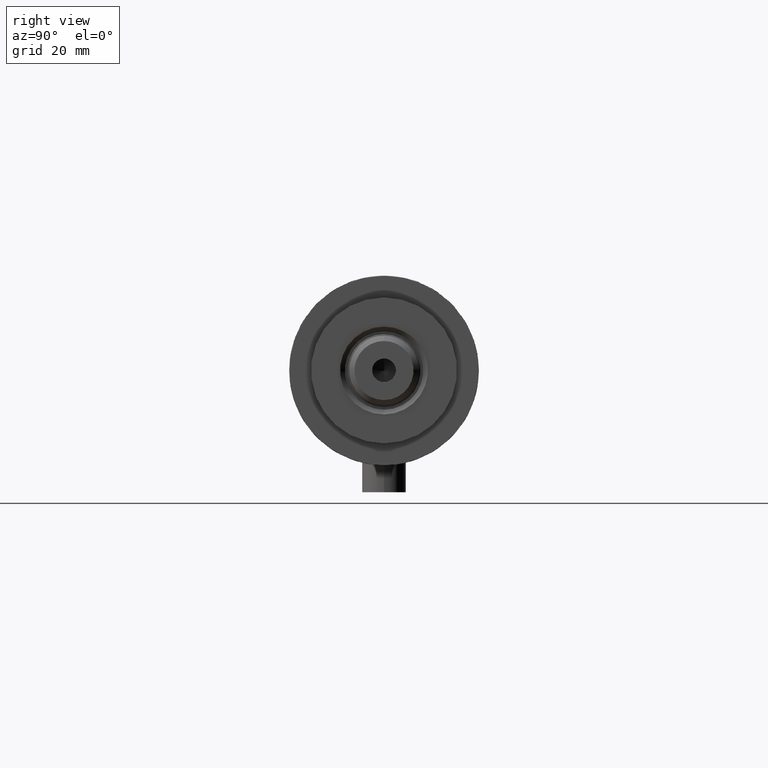
[diagram: clean part render]
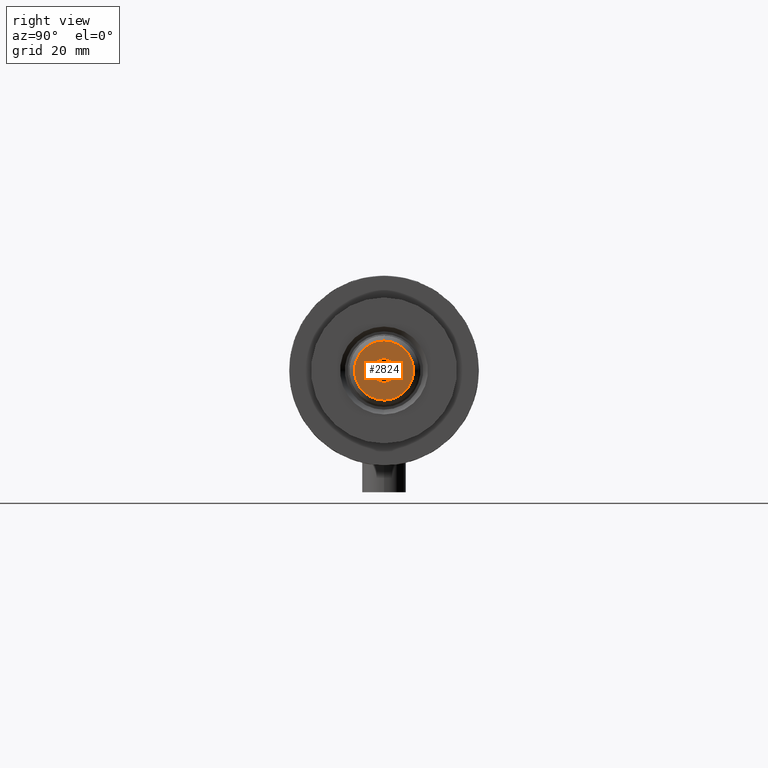
[diagram: same view with one face highlighted and labeled with its STEP entity id]
A machine part, right view. The second image highlights one B-rep face of the part: STEP entity #2824.
In plain terms, the highlighted planar face has unit normal (1, 0, -0).
Its self-contained STEP definition (entity closure, byte-faithful):
#50 = DIRECTION ( 'NONE',  ( -0.000000000000000000, -0.000000000000000000, 1.000000000000000000 ) ) ;
#89 = DIRECTION ( 'NONE',  ( 1.000000000000000000, 0.000000000000000000, 0.000000000000000000 ) ) ;
#128 = CARTESIAN_POINT ( 'NONE',  ( 3.249999999999998224, 0.000000000000000000, 149.6000000000000227 ) ) ;
#334 = VERTEX_POINT ( 'NONE', #128 ) ;
#353 = EDGE_LOOP ( 'NONE', ( #3191, #3485 ) ) ;
#388 = CARTESIAN_POINT ( 'NONE',  ( -3.249999999999998224, 3.980102097228895766E-16, 149.6000000000000227 ) ) ;
#480 = AXIS2_PLACEMENT_3D ( 'NONE', #1323, #2076, #4066 ) ;
#713 = AXIS2_PLACEMENT_3D ( 'NONE', #1888, #4336, #988 ) ;
#819 = CARTESIAN_POINT ( 'NONE',  ( 0.000000000000000000, 0.000000000000000000, 149.6000000000000227 ) ) ;
#988 = DIRECTION ( 'NONE',  ( 1.000000000000000000, 0.000000000000000000, 0.000000000000000000 ) ) ;
#1003 = EDGE_CURVE ( 'NONE', #3436, #334, #2622, .T. ) ;
#1028 = CIRCLE ( 'NONE', #713, 8.099999999999981881 ) ;
#1168 = CARTESIAN_POINT ( 'NONE',  ( -8.099999999999981881, 0.000000000000000000, 149.6000000000000227 ) ) ;
#1212 = VERTEX_POINT ( 'NONE', #1532 ) ;
#1237 = CARTESIAN_POINT ( 'NONE',  ( 0.000000000000000000, 0.000000000000000000, 149.6000000000000227 ) ) ;
#1244 = EDGE_CURVE ( 'NONE', #334, #3436, #4816, .T. ) ;
#1311 = EDGE_LOOP ( 'NONE', ( #3894, #1405 ) ) ;
#1323 = CARTESIAN_POINT ( 'NONE',  ( 0.000000000000000000, 0.000000000000000000, 149.6000000000000227 ) ) ;
#1405 = ORIENTED_EDGE ( 'NONE', *, *, #1003, .F. ) ;
#1532 = CARTESIAN_POINT ( 'NONE',  ( 8.099999999999981881, 1.077689183249669619E-15, 149.6000000000000227 ) ) ;
#1654 = CIRCLE ( 'NONE', #2941, 8.099999999999981881 ) ;
#1711 = PLANE ( 'NONE',  #480 ) ;
#1737 = FACE_OUTER_BOUND ( 'NONE', #353, .T. ) ;
#1888 = CARTESIAN_POINT ( 'NONE',  ( 0.000000000000000000, 0.000000000000000000, 149.6000000000000227 ) ) ;
#2076 = DIRECTION ( 'NONE',  ( 0.000000000000000000, 0.000000000000000000, 1.000000000000000000 ) ) ;
#2209 = EDGE_CURVE ( 'NONE', #1212, #3195, #1654, .T. ) ;
#2622 = CIRCLE ( 'NONE', #4737, 3.249999999999998224 ) ;
#2824 = ADVANCED_FACE ( 'NONE', ( #1737, #4036 ), #1711, .T. ) ;
#2941 = AXIS2_PLACEMENT_3D ( 'NONE', #4602, #3134, #89 ) ;
#3065 = DIRECTION ( 'NONE',  ( 1.000000000000000000, 0.000000000000000000, 0.000000000000000000 ) ) ;
#3134 = DIRECTION ( 'NONE',  ( 0.000000000000000000, 0.000000000000000000, 1.000000000000000000 ) ) ;
#3191 = ORIENTED_EDGE ( 'NONE', *, *, #3520, .T. ) ;
#3195 = VERTEX_POINT ( 'NONE', #1168 ) ;
#3436 = VERTEX_POINT ( 'NONE', #388 ) ;
#3485 = ORIENTED_EDGE ( 'NONE', *, *, #2209, .T. ) ;
#3520 = EDGE_CURVE ( 'NONE', #3195, #1212, #1028, .T. ) ;
#3887 = DIRECTION ( 'NONE',  ( 1.000000000000000000, 0.000000000000000000, 0.000000000000000000 ) ) ;
#3894 = ORIENTED_EDGE ( 'NONE', *, *, #1244, .F. ) ;
#4036 = FACE_BOUND ( 'NONE', #1311, .T. ) ;
#4066 = DIRECTION ( 'NONE',  ( 1.000000000000000000, 0.000000000000000000, -0.000000000000000000 ) ) ;
#4263 = DIRECTION ( 'NONE',  ( -0.000000000000000000, -0.000000000000000000, 1.000000000000000000 ) ) ;
#4336 = DIRECTION ( 'NONE',  ( 0.000000000000000000, 0.000000000000000000, 1.000000000000000000 ) ) ;
#4432 = AXIS2_PLACEMENT_3D ( 'NONE', #819, #50, #3065 ) ;
#4602 = CARTESIAN_POINT ( 'NONE',  ( 0.000000000000000000, 0.000000000000000000, 149.6000000000000227 ) ) ;
#4737 = AXIS2_PLACEMENT_3D ( 'NONE', #1237, #4263, #3887 ) ;
#4816 = CIRCLE ( 'NONE', #4432, 3.249999999999998224 ) ;